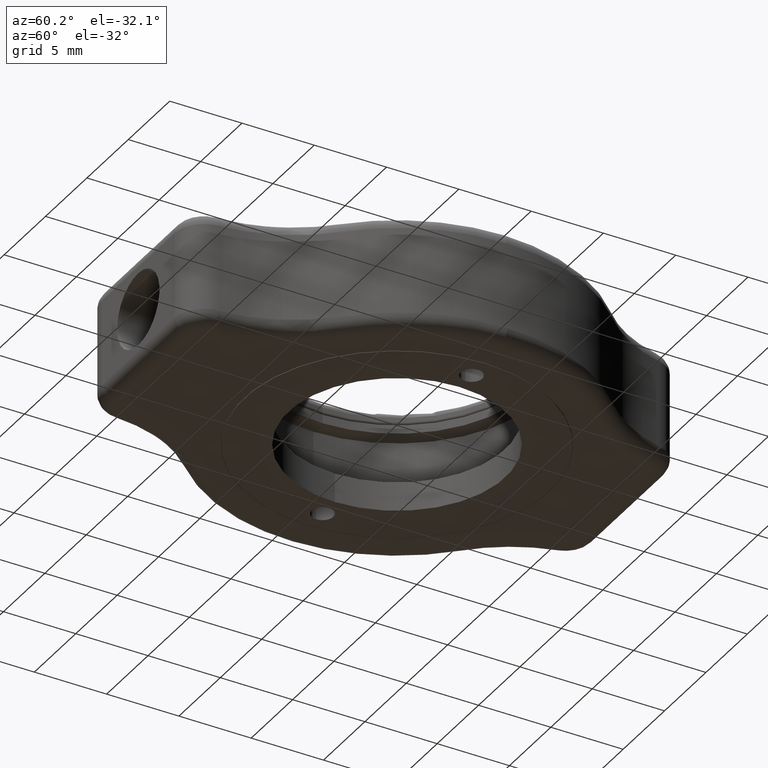
[diagram: clean part render]
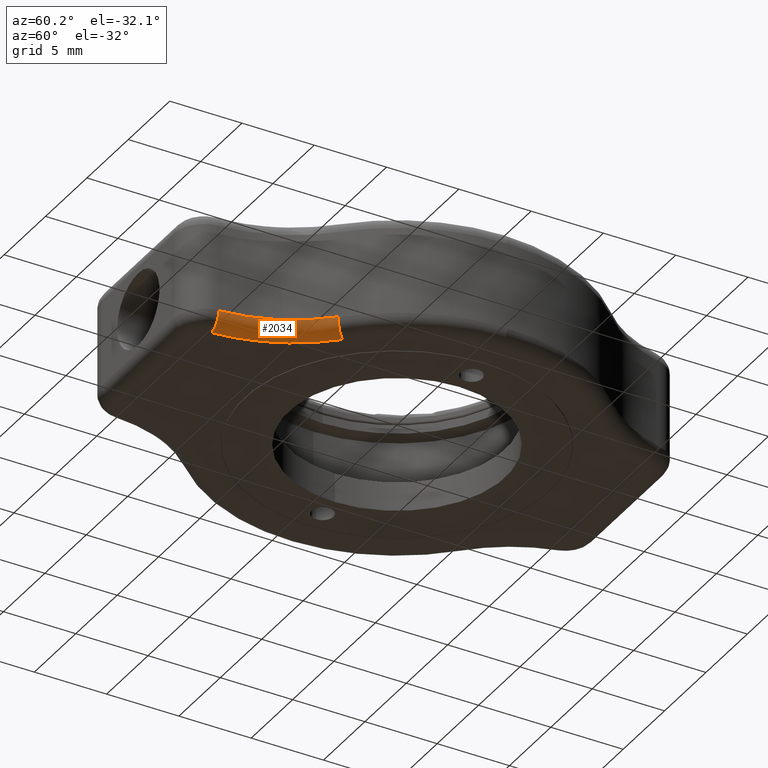
[diagram: same view with one face highlighted and labeled with its STEP entity id]
A machine part, auxiliary view. The second image highlights one B-rep face of the part: STEP entity #2034.
In plain terms, the highlighted toroidal blend (fillet) surface has major radius 11 mm and minor (blend) radius 1 mm.
Its self-contained STEP definition (entity closure, byte-faithful):
#86 = AXIS2_PLACEMENT_3D ( 'NONE', #466, #477, #1177 ) ;
#121 = EDGE_CURVE ( 'NONE', #843, #213, #2174, .T. ) ;
#189 = DIRECTION ( 'NONE',  ( -0.05361238985000794200, -0.9985618216488005800, -0.0000000000000000000 ) ) ;
#203 = VERTEX_POINT ( 'NONE', #918 ) ;
#213 = VERTEX_POINT ( 'NONE', #1101 ) ;
#216 = CIRCLE ( 'NONE', #2064, 10.00000000000000200 ) ;
#246 = TOROIDAL_SURFACE ( 'NONE', #86, 11.00000000000000400, 1.000000000000000000 ) ;
#319 = ORIENTED_EDGE ( 'NONE', *, *, #1549, .F. ) ;
#466 = CARTESIAN_POINT ( 'NONE',  ( 18.63132003482075700, -14.90997688024631900, 31.00000000000000400 ) ) ;
#477 = DIRECTION ( 'NONE',  ( -0.0000000000000000000, 0.0000000000000000000, 1.000000000000000000 ) ) ;
#498 = DIRECTION ( 'NONE',  ( 0.7100149647296178900, 0.7041865873900180500, -1.011062299785524800E-017 ) ) ;
#518 = CARTESIAN_POINT ( 'NONE',  ( 10.88526757353056100, -7.099812268220519600, 31.00000000000000400 ) ) ;
#574 = CARTESIAN_POINT ( 'NONE',  ( 7.647139996683949700, -14.32024059189622800, 30.00000000000000400 ) ) ;
#602 = AXIS2_PLACEMENT_3D ( 'NONE', #518, #498, #2120 ) ;
#690 = DIRECTION ( 'NONE',  ( 0.0000000000000000000, -0.0000000000000000000, -1.000000000000000000 ) ) ;
#824 = DIRECTION ( 'NONE',  ( 1.000000000000000000, 0.0000000000000000000, 0.0000000000000000000 ) ) ;
#843 = VERTEX_POINT ( 'NONE', #574 ) ;
#869 = EDGE_LOOP ( 'NONE', ( #1681, #2262, #2205, #319 ) ) ;
#887 = DIRECTION ( 'NONE',  ( 0.9985618216488004700, -0.05361238985000793500, 0.0000000000000000000 ) ) ;
#918 = CARTESIAN_POINT ( 'NONE',  ( 10.88526757353055900, -7.099812268220517800, 30.00000000000000400 ) ) ;
#984 = CARTESIAN_POINT ( 'NONE',  ( 18.63132003482075700, -14.90997688024631900, 30.00000000000000400 ) ) ;
#1101 = CARTESIAN_POINT ( 'NONE',  ( 8.645701818332751600, -14.37385298174623600, 31.00000000000000400 ) ) ;
#1177 = DIRECTION ( 'NONE',  ( 1.000000000000000000, 0.0000000000000000000, 0.0000000000000000000 ) ) ;
#1321 = CARTESIAN_POINT ( 'NONE',  ( 11.58945416092057800, -7.809827232950136800, 31.00000000000000400 ) ) ;
#1399 = VERTEX_POINT ( 'NONE', #1321 ) ;
#1413 = CIRCLE ( 'NONE', #602, 0.9999999999999993300 ) ;
#1549 = EDGE_CURVE ( 'NONE', #203, #843, #1609, .T. ) ;
#1609 = CIRCLE ( 'NONE', #2168, 11.00000000000000400 ) ;
#1681 = ORIENTED_EDGE ( 'NONE', *, *, #2071, .F. ) ;
#1753 = CARTESIAN_POINT ( 'NONE',  ( 18.63132003482075700, -14.90997688024631900, 31.00000000000000400 ) ) ;
#1770 = AXIS2_PLACEMENT_3D ( 'NONE', #1952, #189, #887 ) ;
#1883 = DIRECTION ( 'NONE',  ( -0.0000000000000000000, 0.0000000000000000000, 1.000000000000000000 ) ) ;
#1935 = DIRECTION ( 'NONE',  ( 1.000000000000000000, 0.0000000000000000000, 0.0000000000000000000 ) ) ;
#1952 = CARTESIAN_POINT ( 'NONE',  ( 7.647139996683950600, -14.32024059189622800, 31.00000000000000400 ) ) ;
#2003 = FACE_OUTER_BOUND ( 'NONE', #869, .T. ) ;
#2034 = ADVANCED_FACE ( 'NONE', ( #2003 ), #246, .T. ) ;
#2064 = AXIS2_PLACEMENT_3D ( 'NONE', #1753, #690, #1935 ) ;
#2071 = EDGE_CURVE ( 'NONE', #1399, #203, #1413, .T. ) ;
#2120 = DIRECTION ( 'NONE',  ( -0.7041865873900180500, 0.7100149647296178900, 0.0000000000000000000 ) ) ;
#2141 = EDGE_CURVE ( 'NONE', #213, #1399, #216, .T. ) ;
#2168 = AXIS2_PLACEMENT_3D ( 'NONE', #984, #1883, #824 ) ;
#2174 = CIRCLE ( 'NONE', #1770, 1.000000000000000000 ) ;
#2205 = ORIENTED_EDGE ( 'NONE', *, *, #121, .F. ) ;
#2262 = ORIENTED_EDGE ( 'NONE', *, *, #2141, .F. ) ;